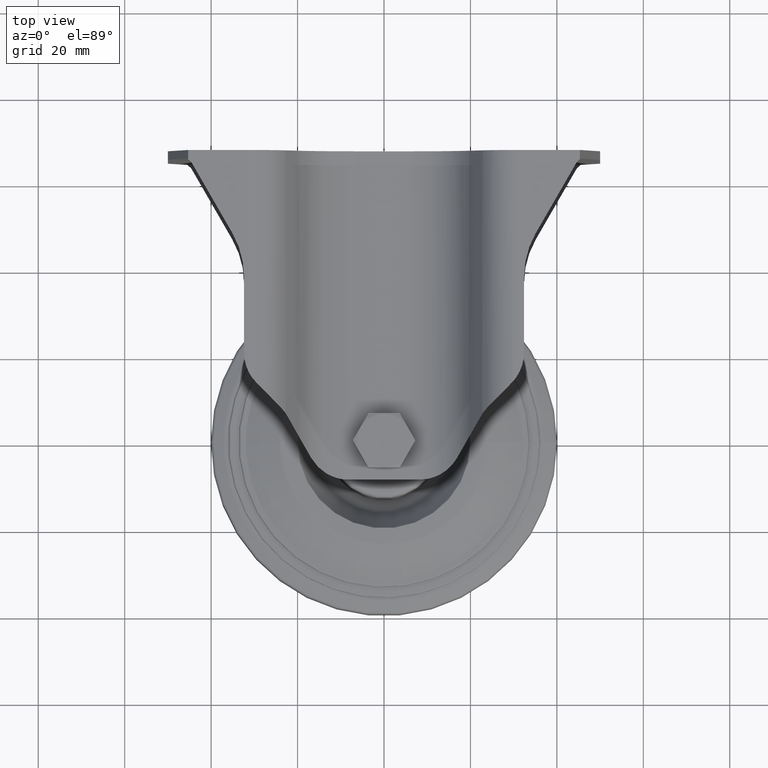
[diagram: clean part render]
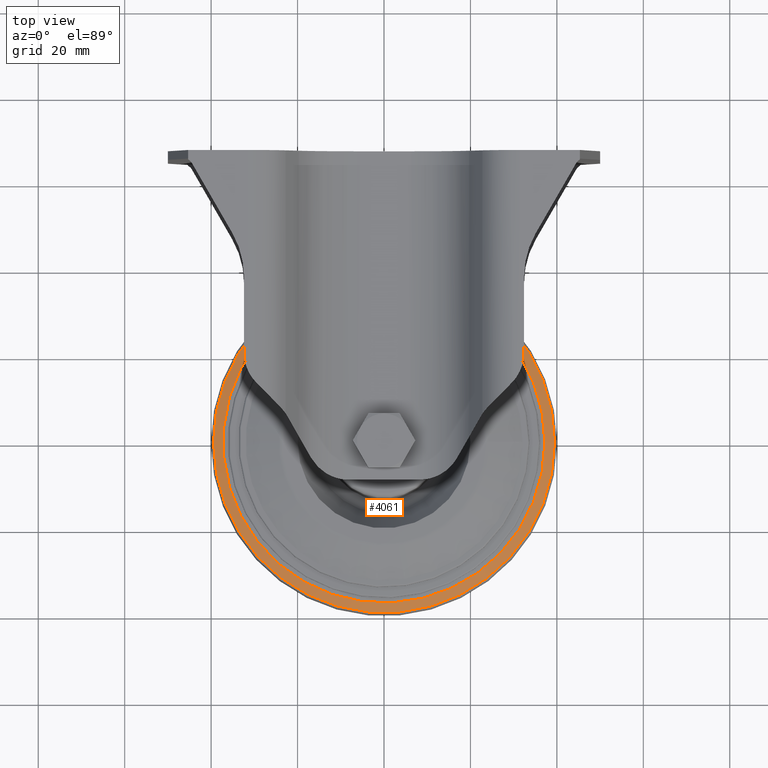
[diagram: same view with one face highlighted and labeled with its STEP entity id]
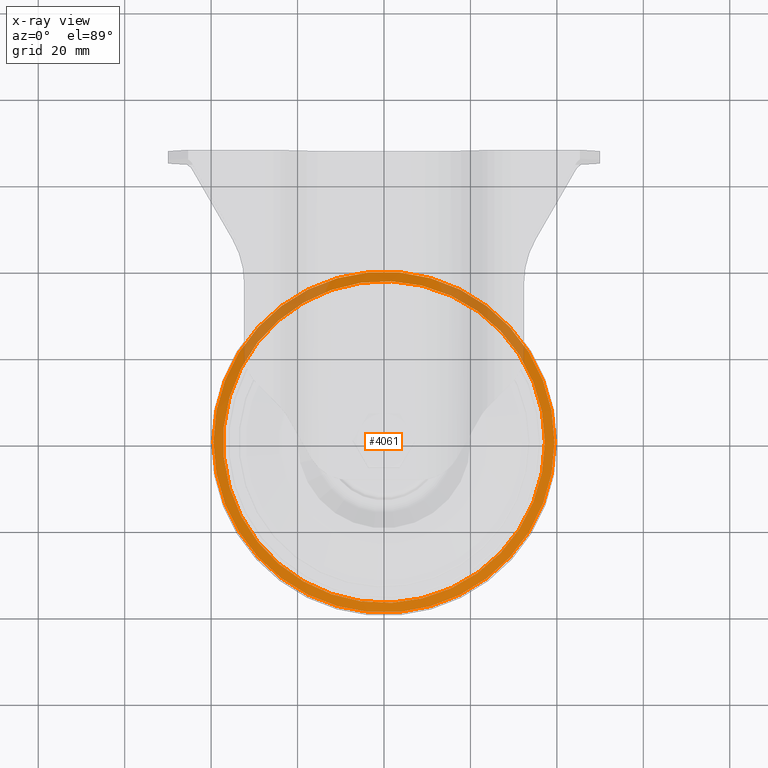
[diagram: x-ray of the same camera — body ghosted, the highlighted face saturated]
A machine part, top view. The second image highlights one B-rep face of the part: STEP entity #4061.
The next image is the same camera in x-ray: the body ghosted, the highlighted face saturated — about 21% of this face is hidden behind the body in this view.
In plain terms, the highlighted conical surface has half-angle 71 deg.
Its self-contained STEP definition (entity closure, byte-faithful):
#557=LINE('',#7324,#824);
#824=VECTOR('',#5722,39.4379734620476);
#1115=FACE_OUTER_BOUND('',#1378,.T.);
#1378=EDGE_LOOP('',(#3670,#3671,#3672,#3673));
#1577=CIRCLE('',#4593,39.4379734620476);
#1578=CIRCLE('',#4595,37.2359153262324);
#2013=VERTEX_POINT('',#7319);
#2014=VERTEX_POINT('',#7323);
#2571=EDGE_CURVE('',#2013,#2013,#1577,.T.);
#2572=EDGE_CURVE('',#2013,#2014,#557,.T.);
#2573=EDGE_CURVE('',#2014,#2014,#1578,.T.);
#3670=ORIENTED_EDGE('',*,*,#2571,.F.);
#3671=ORIENTED_EDGE('',*,*,#2572,.T.);
#3672=ORIENTED_EDGE('',*,*,#2573,.T.);
#3673=ORIENTED_EDGE('',*,*,#2572,.F.);
#3853=CONICAL_SURFACE('',#4594,39.4379734620476,1.23918376891597);
#4061=ADVANCED_FACE('',(#1115),#3853,.T.);
#4593=AXIS2_PLACEMENT_3D('',#7321,#5718,#5719);
#4594=AXIS2_PLACEMENT_3D('',#7322,#5720,#5721);
#4595=AXIS2_PLACEMENT_3D('',#7325,#5723,#5724);
#5718=DIRECTION('center_axis',(6.12323399573677E-17,0.,-1.));
#5719=DIRECTION('ref_axis',(-1.,0.,-6.12323399573677E-17));
#5720=DIRECTION('center_axis',(6.12323399573677E-17,0.,-1.));
#5721=DIRECTION('ref_axis',(-1.,0.,-6.12323399573677E-17));
#5722=DIRECTION('',(-0.945518575599316,1.15792629714207E-16,0.32556815445716));
#5723=DIRECTION('center_axis',(6.12323399573677E-17,0.,-1.));
#5724=DIRECTION('ref_axis',(-1.,0.,-6.12323399573677E-17));
#7319=CARTESIAN_POINT('',(39.4379734620476,-4.82975879651549E-15,7.18427944378395));
#7321=CARTESIAN_POINT('Origin',(-4.39910241250507E-16,0.,7.18427944378395));
#7322=CARTESIAN_POINT('Origin',(-4.39910241250507E-16,0.,7.18427944378395));
#7323=CARTESIAN_POINT('',(37.2359153262324,-4.56008445175924E-15,7.9425088660143));
#7324=CARTESIAN_POINT('',(39.4379734620476,-4.82975879651549E-15,7.18427944378395));
#7325=CARTESIAN_POINT('Origin',(-4.86338402998194E-16,0.,7.9425088660143));